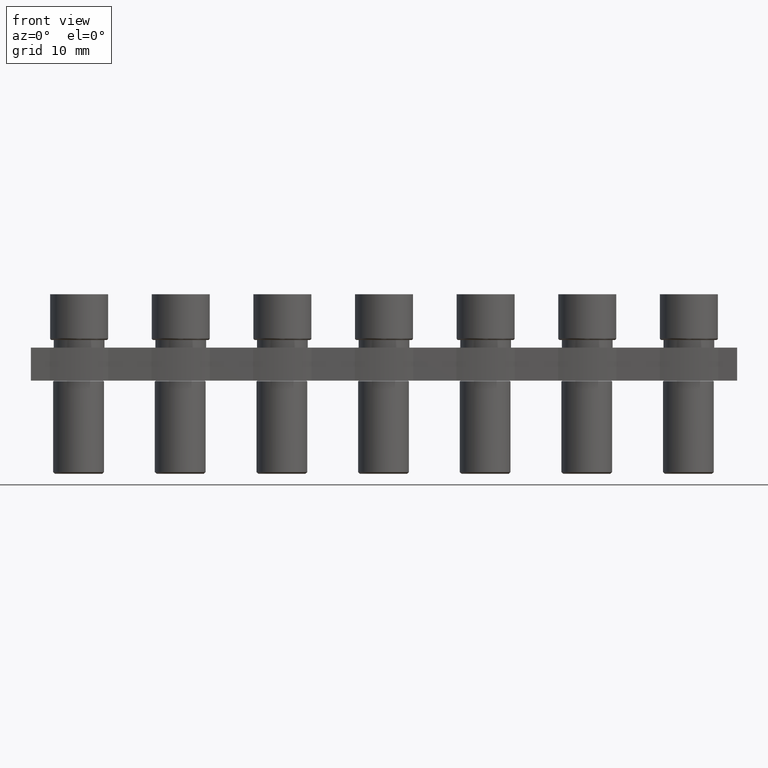
[diagram: clean part render]
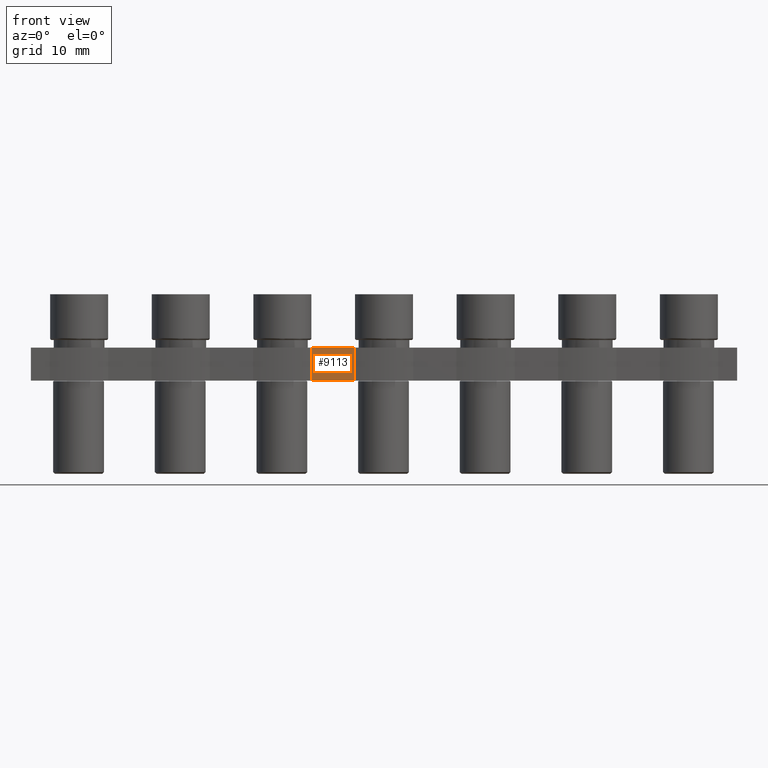
[diagram: same view with one face highlighted and labeled with its STEP entity id]
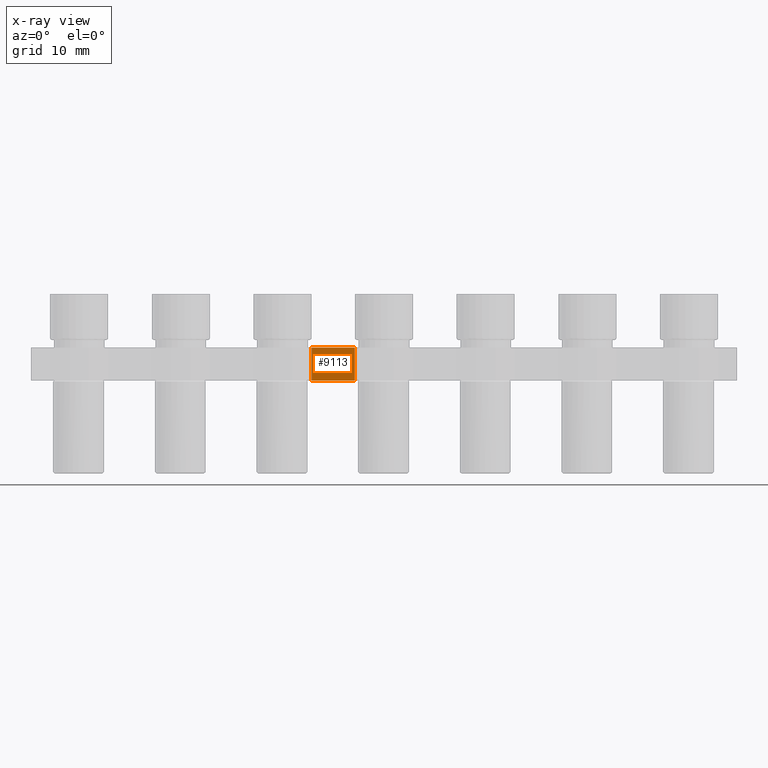
[diagram: x-ray of the same camera — body ghosted, the highlighted face saturated]
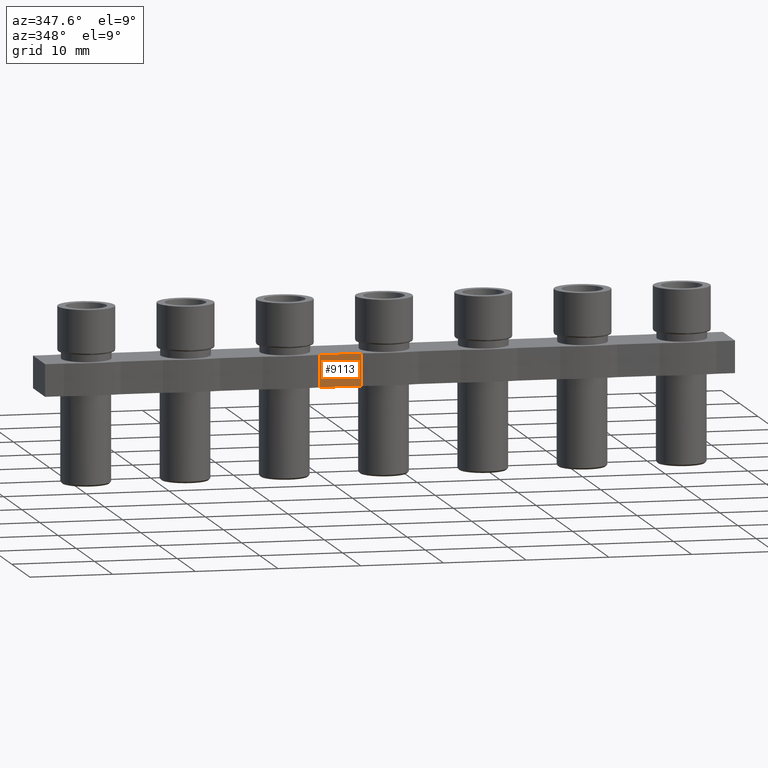
[diagram: same view with one face highlighted and labeled with its STEP entity id]
A machine part, front view. The second image highlights one B-rep face of the part: STEP entity #9113.
The next image is the same camera in x-ray: the body ghosted, the highlighted face saturated — about 0% of this face is hidden behind the body in this view.
A second angle (auxiliary view) of the same face is appended — the face is thin or edge-on in the first view.
In plain terms, the highlighted planar face has unit normal (-0, 1, 0).
Its self-contained STEP definition (entity closure, byte-faithful):
#1058 = VERTEX_POINT ( 'NONE', #4827 ) ;
#1417 = EDGE_LOOP ( 'NONE', ( #4352, #4377, #4424, #4368 ) ) ;
#2339 = VERTEX_POINT ( 'NONE', #5034 ) ;
#2353 = VERTEX_POINT ( 'NONE', #5015 ) ;
#2374 = VERTEX_POINT ( 'NONE', #5113 ) ;
#2480 = DIRECTION ( 'NONE',  ( 1.000000000000000000, 1.245679091791856200E-016, -0.0000000000000000000 ) ) ;
#2488 = LINE ( 'NONE', #2492, #3772 ) ;
#2492 = CARTESIAN_POINT ( 'NONE',  ( -7.849999999999992500, -3.349999999999918400, -0.9000000000000014700 ) ) ;
#2566 = LINE ( 'NONE', #2567, #3804 ) ;
#2567 = CARTESIAN_POINT ( 'NONE',  ( -101.8500000000000500, -3.349999999999922400, -4.800000000000001600 ) ) ;
#2607 = DIRECTION ( 'NONE',  ( -1.000000000000000000, 0.0000000000000000000, -0.0000000000000000000 ) ) ;
#3032 = CARTESIAN_POINT ( 'NONE',  ( -32.55289976937029200, -3.349999999999923700, -9.302499305941093900 ) ) ;
#3033 = DIRECTION ( 'NONE',  ( 0.0000000000000000000, 0.0000000000000000000, 1.000000000000000000 ) ) ;
#3041 = DIRECTION ( 'NONE',  ( -0.0000000000000000000, -0.0000000000000000000, -1.000000000000000000 ) ) ;
#3042 = LINE ( 'NONE', #3062, #3962 ) ;
#3062 = CARTESIAN_POINT ( 'NONE',  ( -27.44710023062970100, -3.349999999999922400, -9.302499305941093900 ) ) ;
#3069 = LINE ( 'NONE', #3032, #3941 ) ;
#3772 = VECTOR ( 'NONE', #2480, 1000.000000000000000 ) ;
#3804 = VECTOR ( 'NONE', #2607, 1000.000000000000000 ) ;
#3941 = VECTOR ( 'NONE', #3033, 1000.000000000000000 ) ;
#3962 = VECTOR ( 'NONE', #3041, 1000.000000000000000 ) ;
#4352 = ORIENTED_EDGE ( 'NONE', *, *, #8743, .F. ) ;
#4368 = ORIENTED_EDGE ( 'NONE', *, *, #8622, .F. ) ;
#4377 = ORIENTED_EDGE ( 'NONE', *, *, #8586, .F. ) ;
#4424 = ORIENTED_EDGE ( 'NONE', *, *, #8746, .F. ) ;
#4827 = CARTESIAN_POINT ( 'NONE',  ( -27.44710023062970100, -3.349999999999921000, -0.9000000000000014700 ) ) ;
#5015 = CARTESIAN_POINT ( 'NONE',  ( -27.44710023062970800, -3.349999999999922400, -4.800000000000001600 ) ) ;
#5034 = CARTESIAN_POINT ( 'NONE',  ( -32.55289976937029900, -3.349999999999923300, -4.800000000000001600 ) ) ;
#5113 = CARTESIAN_POINT ( 'NONE',  ( -32.55289976937028500, -3.349999999999922400, -0.9000000000000014700 ) ) ;
#7594 = AXIS2_PLACEMENT_3D ( 'NONE', #10295, #10300, #10269 ) ;
#8586 = EDGE_CURVE ( 'NONE', #2374, #1058, #2488, .T. ) ;
#8622 = EDGE_CURVE ( 'NONE', #2353, #2339, #2566, .T. ) ;
#8743 = EDGE_CURVE ( 'NONE', #1058, #2353, #3042, .T. ) ;
#8746 = EDGE_CURVE ( 'NONE', #2339, #2374, #3069, .T. ) ;
#9113 = ADVANCED_FACE ( 'NONE', ( #10254 ), #10259, .F. ) ;
#10254 = FACE_OUTER_BOUND ( 'NONE', #1417, .T. ) ;
#10259 = PLANE ( 'NONE',  #7594 ) ;
#10269 = DIRECTION ( 'NONE',  ( -1.000000000000000000, -1.245679091791856200E-016, 0.0000000000000000000 ) ) ;
#10295 = CARTESIAN_POINT ( 'NONE',  ( -7.849999999999992500, -3.349999999999918400, -0.9000000000000014700 ) ) ;
#10300 = DIRECTION ( 'NONE',  ( -1.245679091791856200E-016, 1.000000000000000000, 0.0000000000000000000 ) ) ;